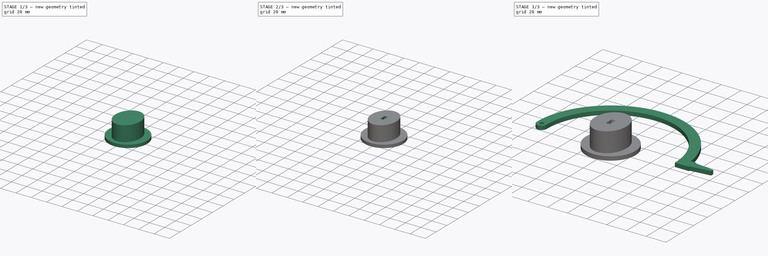
[diagram: build sequence overview — one tinted view per stage of 3, left to right]
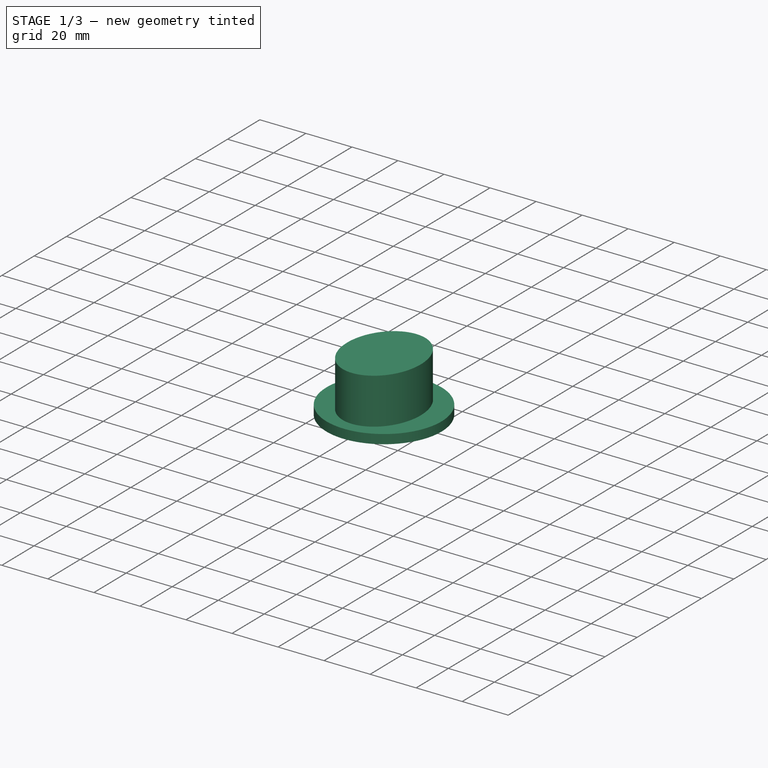
[diagram: stage 1 of 3 — iso view after this stage's code; geometry added in this stage tinted green]
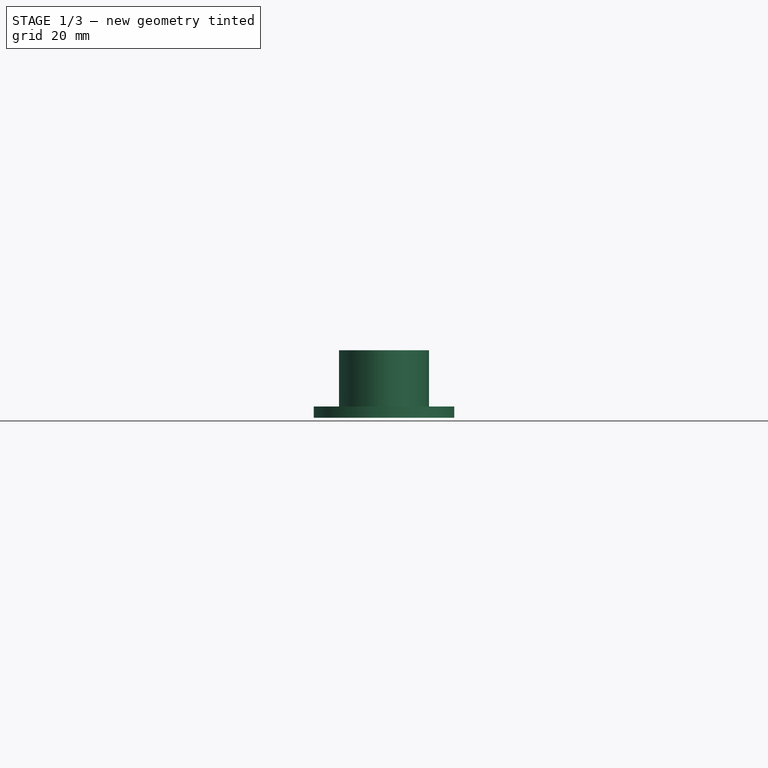
[diagram: stage 1 of 3 — front view after this stage's code; geometry added in this stage tinted green]
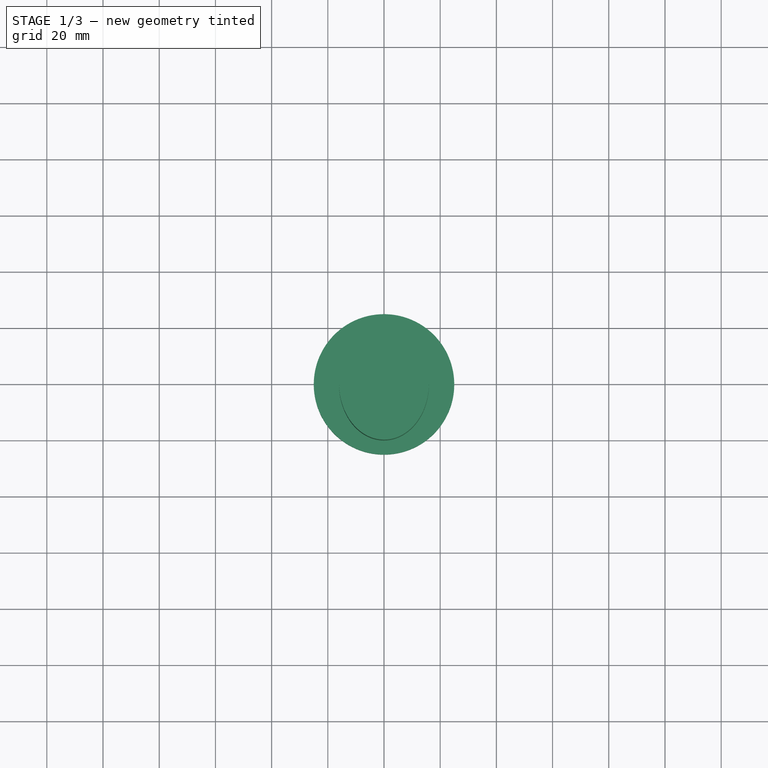
[diagram: stage 1 of 3 — top view after this stage's code; geometry added in this stage tinted green]
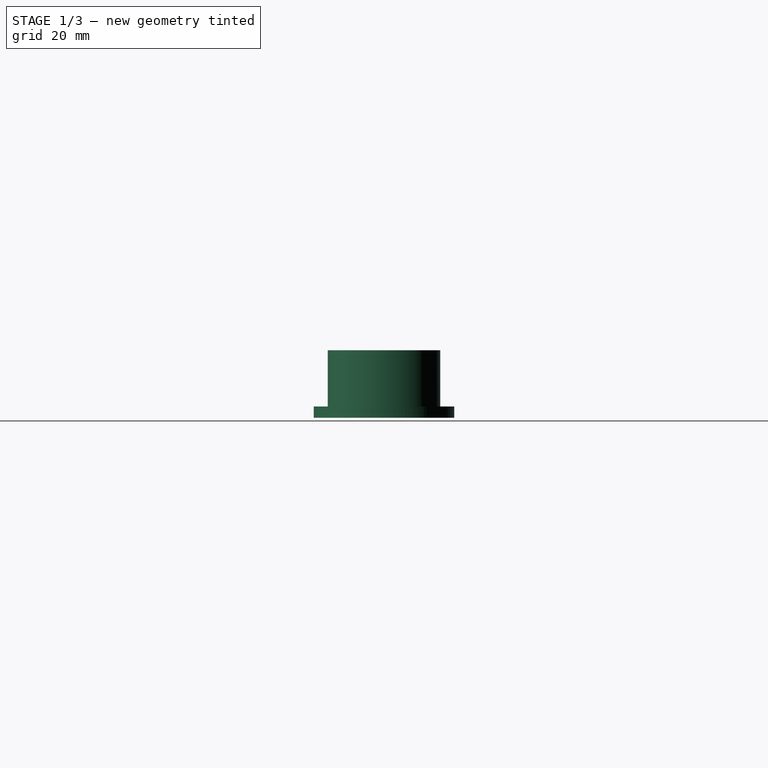
[diagram: stage 1 of 3 — right view after this stage's code; geometry added in this stage tinted green]
FCSTD DOCUMENT  (FreeCAD 0.18R0.18.5)
Label: mosquito-coil-saver
License: All rights reserved
LicenseURL: http://en.wikipedia.org/wiki/All_rights_reserved
objects: Sketcher::SketchObject×5, PartDesign::Pad×3, PartDesign::Pocket×2, PartDesign::Body×2
note: 17 computed .brp shape members not serialized (recipe doc carries the construction recipe); baked Part::Feature solids carry a one-line shape summary decoded from their .brp

FEATURE [PartDesign::Body] Body
  Group = -> [Sketch,Pad,Sketch001,Pocket]
  Origin = -> Origin
  Tip = -> Pocket
FEATURE [Sketcher::SketchObject] Sketch002
  MapMode = 5
  Support = -> [XY_Plane001]
  sketch-geometry (1):
    g0: Circle CenterX=0 CenterY=0 CenterZ=0 NormalX=0 NormalY=0 NormalZ=1 AngleXU=0 Radius=25
  constraints (2):
    c: Diameter(g0) = 50
    c: Coincident(g0,g-1)
FEATURE [PartDesign::Pad] Pad001
  Length = 4
  Length2 = 100
  Profile = -> Sketch002
  Type = 0
FEATURE [Sketcher::SketchObject] Sketch003
  MapMode = 5
  Placement = pos=(0,0,4) rot=(0,0,1;0rad)
  Support = -> [Pad001]
  sketch-geometry (5):
    g0: Ellipse CenterX=0 CenterY=0 CenterZ=0 NormalX=0 NormalY=0 NormalZ=1 MajorRadius=20 MinorRadius=16 AngleXU=-1.5708
    g1: LineSegment [constr] StartX=0 StartY=-20 StartZ=0 EndX=0 EndY=20 EndZ=0
    g2: LineSegment [constr] StartX=16 StartY=0 StartZ=0 EndX=-16 EndY=0 EndZ=0
    g3: GeomPoint X=0 Y=-12 Z=0
    g4: GeomPoint X=0 Y=12 Z=0
  constraints (5):
    c: InternalAlignment(g1-g4 -> g0) x4
    c: Vertical(g1)
    c: Coincident(g0,g-1)
    c: DistanceY(g3,g4) = 24
    c: DistanceY(g1,g1) = 40
FEATURE [PartDesign::Pad] Pad002
  BaseFeature = -> Pad001
  Length = 20
  Length2 = 100
  Profile = -> Sketch003
  Type = 0
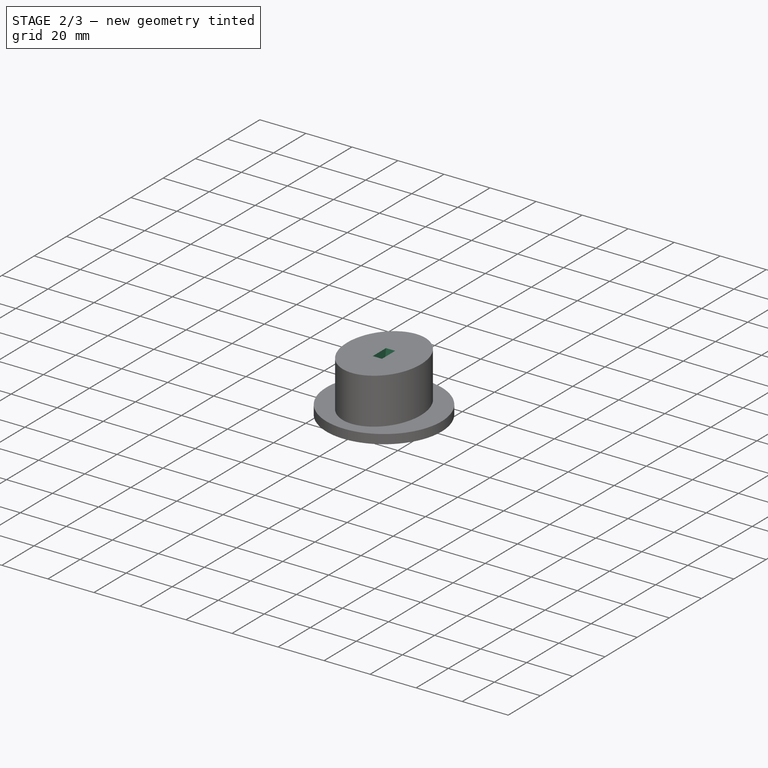
[diagram: stage 2 of 3 — iso view after this stage's code; geometry added in this stage tinted green]
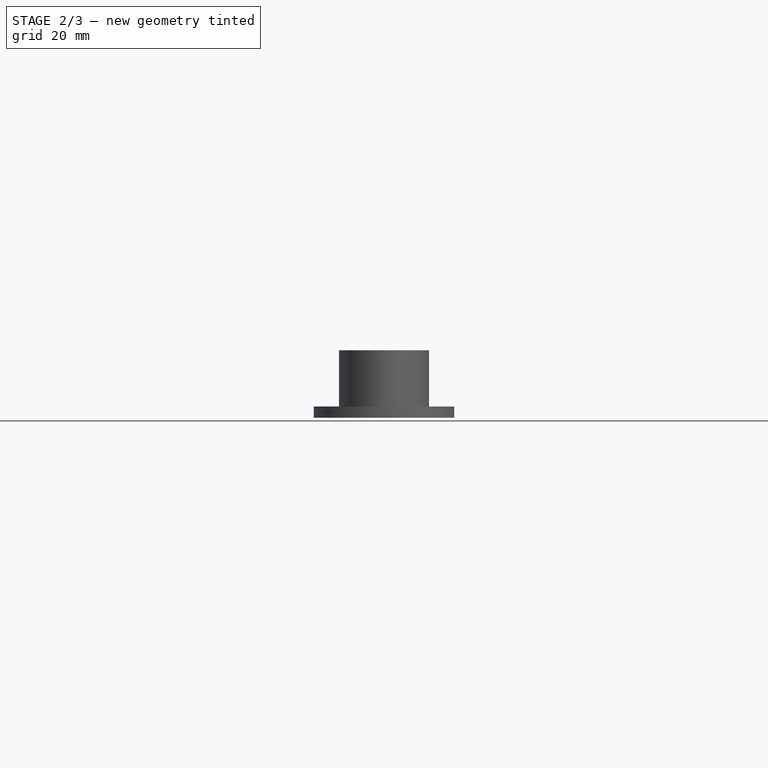
[diagram: stage 2 of 3 — front view after this stage's code; geometry added in this stage tinted green]
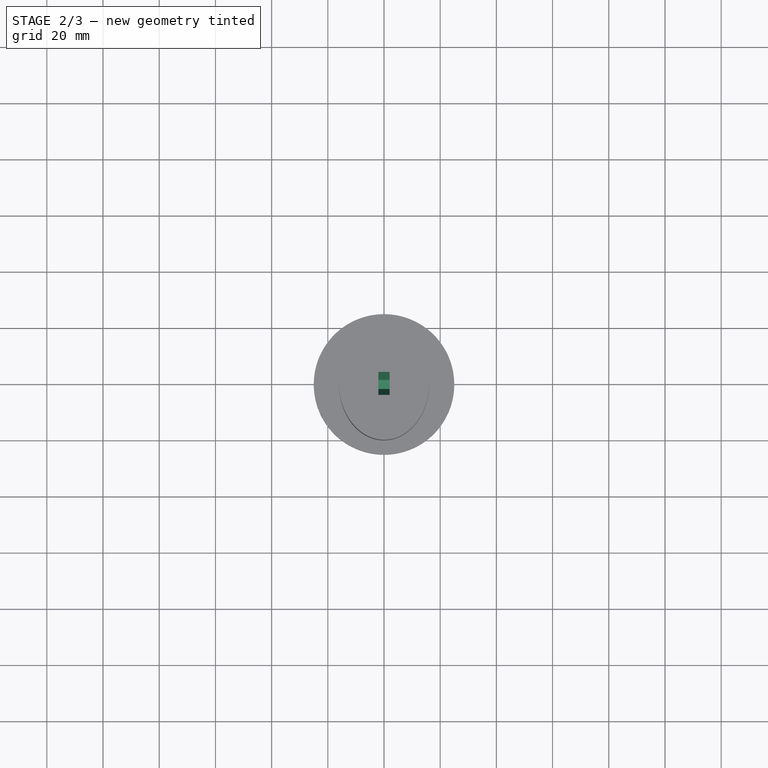
[diagram: stage 2 of 3 — top view after this stage's code; geometry added in this stage tinted green]
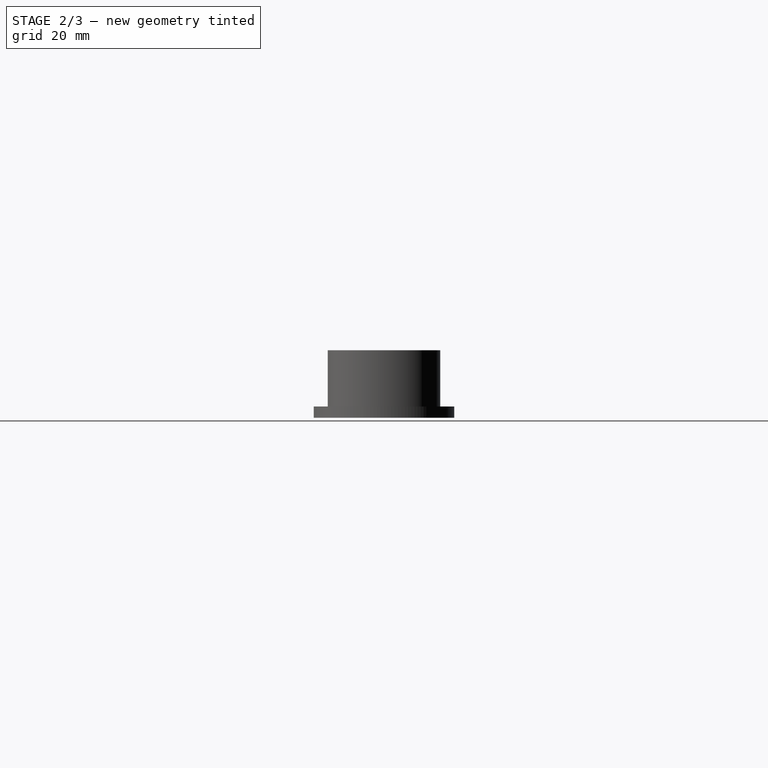
[diagram: stage 2 of 3 — right view after this stage's code; geometry added in this stage tinted green]
FEATURE [Sketcher::SketchObject] Sketch004
  MapMode = 5
  Placement = pos=(0,0,0) rot=(0.57735,0.57735,0.57735;2.0944rad)
  Support = -> [YZ_Plane001]
  expr: Constraints[10] = 20 + 0.25
  expr: Constraints[6] = 8 + 0.25
  expr: Constraints[7] = 3 + 0.25
  sketch-geometry (4):
    g0: LineSegment StartX=-4.125 StartY=24.25 StartZ=0 EndX=4.125 EndY=24.25 EndZ=0
    g1: LineSegment StartX=4.125 StartY=24.25 StartZ=0 EndX=1.625 EndY=4 EndZ=0
    g2: LineSegment StartX=1.625 StartY=4 StartZ=0 EndX=-1.625 EndY=4 EndZ=0
    g3: LineSegment StartX=-1.625 StartY=4 StartZ=0 EndX=-4.125 EndY=24.25 EndZ=0
  constraints (11):
    c: Coincident(g0,g1)
    c: Coincident(g1,g2)
    c: Coincident(g2,g3)
    c: Horizontal(g2)
    c: Equal(g1,g3)
    c: Coincident(g0,g3)
    c: DistanceX(g0,g0) = 8.25
    c: DistanceX(g2,g2) = 3.25
    c: DistanceY(g-1,g1) = 4
    c: Symmetric(g0,g0,g-2)
    c: DistanceY(g2,g0) = 20.25
FEATURE [PartDesign::Pocket] Pocket001
  BaseFeature = -> Pad002
  Length = 2
  Length2 = 2
  Profile = -> Sketch004
  Type = 4
FEATURE [PartDesign::Body] Body001  label="base"
  Group = -> [Sketch002,Pad001,Sketch003,Pad002,Sketch004,Pocket001]
  Origin = -> Origin001
  Tip = -> Pocket001
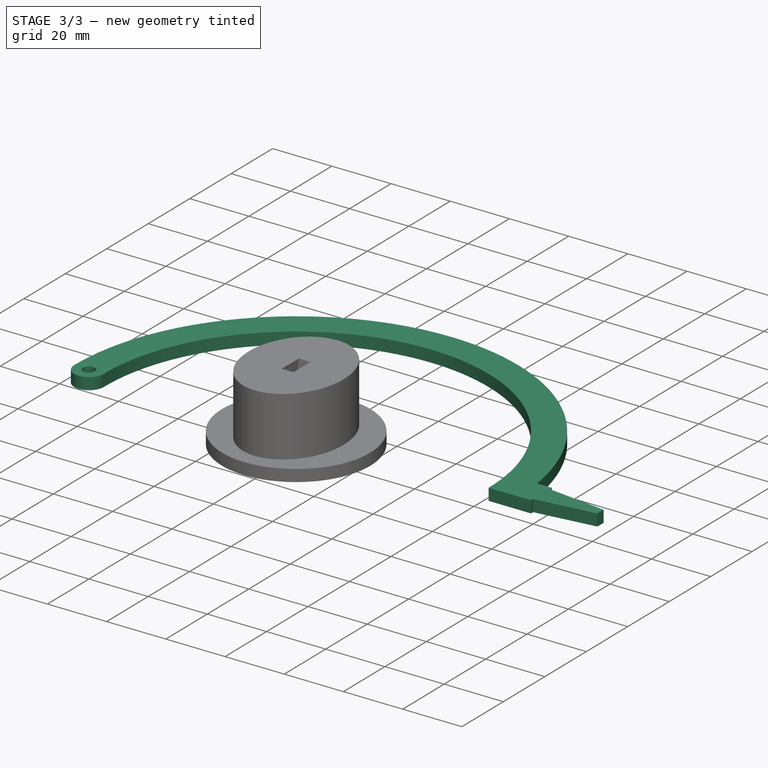
[diagram: stage 3 of 3 — iso view after this stage's code; geometry added in this stage tinted green]
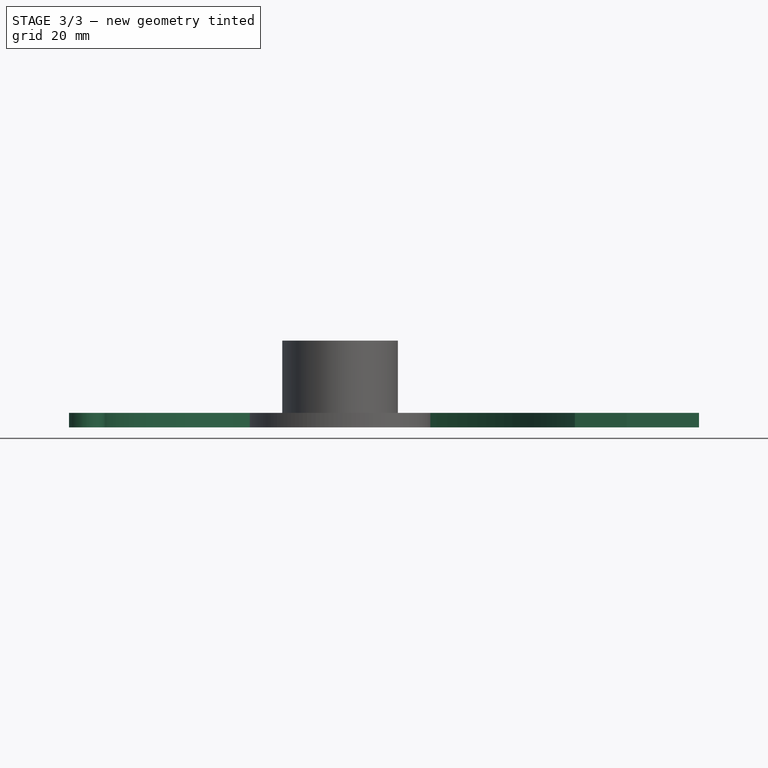
[diagram: stage 3 of 3 — front view after this stage's code; geometry added in this stage tinted green]
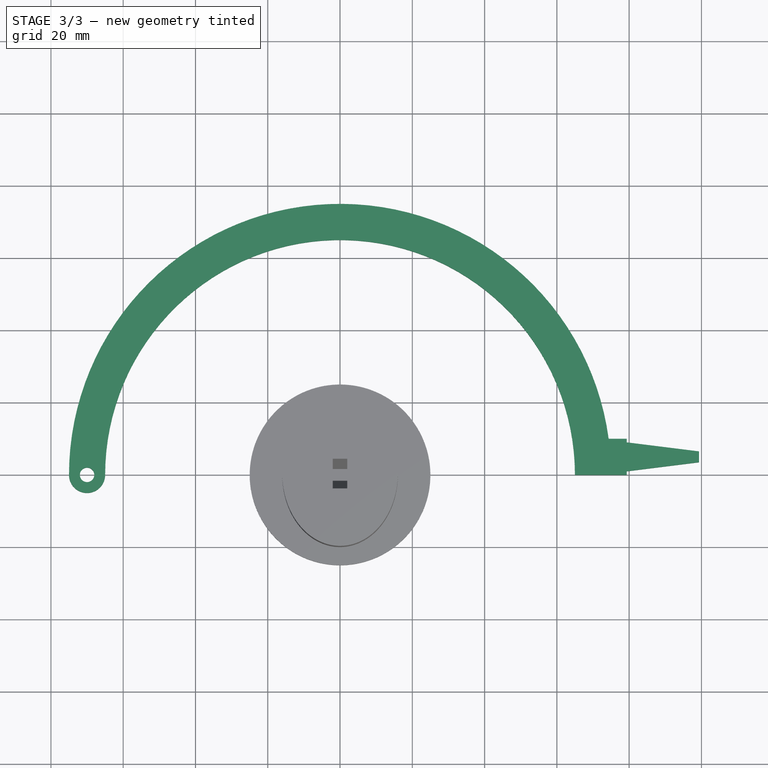
[diagram: stage 3 of 3 — top view after this stage's code; geometry added in this stage tinted green]
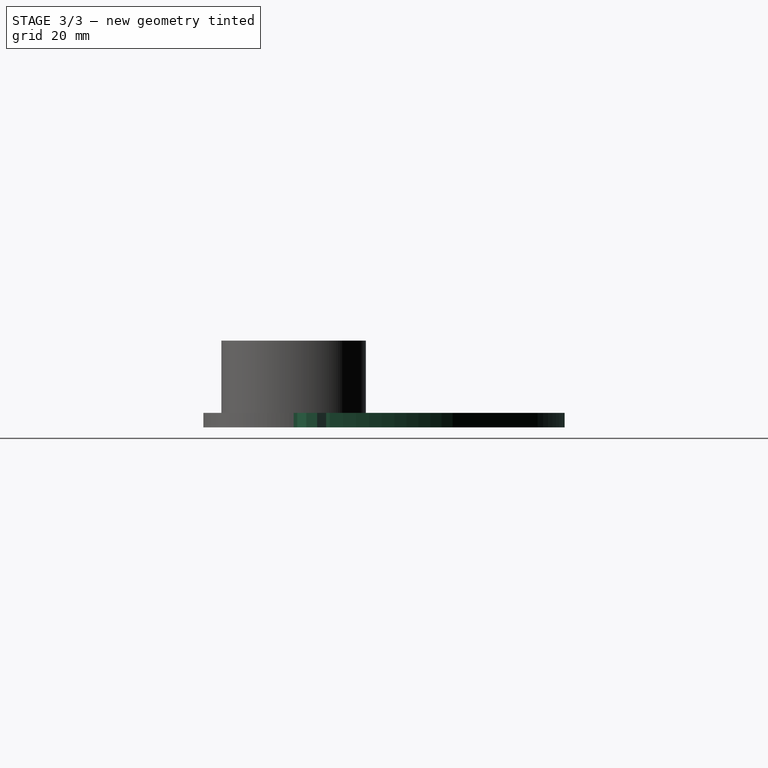
[diagram: stage 3 of 3 — right view after this stage's code; geometry added in this stage tinted green]
FEATURE [Sketcher::SketchObject] Sketch
  MapMode = 5
  Support = -> [XY_Plane]
  expr: Constraints[4] = 120 + 10
  sketch-geometry (12):
    g0: ArcOfCircle CenterX=0 CenterY=0 CenterZ=0 NormalX=0 NormalY=0 NormalZ=1 AngleXU=0 Radius=75 StartAngle=0.133732 EndAngle=3.14159
    g1: ArcOfCircle CenterX=0 CenterY=0 CenterZ=0 NormalX=0 NormalY=0 NormalZ=1 AngleXU=0 Radius=65 StartAngle=0 EndAngle=3.14159
    g2: LineSegment [constr] StartX=-75 StartY=0 StartZ=0 EndX=-65 EndY=-1.2e-15 EndZ=0
    g3: LineSegment StartX=74.3303 StartY=10 StartZ=0 EndX=79.3303 EndY=10 EndZ=0
    g4: LineSegment StartX=79.3303 StartY=0 StartZ=0 EndX=65 EndY=0 EndZ=0
    g5: LineSegment StartX=99.3303 StartY=6.5 StartZ=0 EndX=99.3303 EndY=3.5 EndZ=0
    g6: LineSegment StartX=79.3303 StartY=9 StartZ=0 EndX=79.3303 EndY=10 EndZ=0
    g7: LineSegment StartX=79.3303 StartY=9 StartZ=0 EndX=99.3303 EndY=6.5 EndZ=0
    g8: LineSegment StartX=79.3303 StartY=0 StartZ=0 EndX=79.3303 EndY=1 EndZ=0
    g9: LineSegment StartX=79.3303 StartY=1 StartZ=0 EndX=99.3303 EndY=3.5 EndZ=0
    g10: LineSegment [constr] StartX=74.3303 StartY=10 StartZ=0 EndX=74.3303 EndY=0 EndZ=0
    g11: ArcOfCircle CenterX=-70 CenterY=0 CenterZ=0 NormalX=0 NormalY=0 NormalZ=1 AngleXU=0 Radius=5 StartAngle=3.14159 EndAngle=6.28319
  constraints (36):
    c: Coincident(g1,g0)
    c: PointOnObject(g1,g-1)
    c: PointOnObject(g1,g-1)
    c: PointOnObject(g0,g-1)
    c: DistanceX(g1,g1) = 130
    c: DistanceX(g0,g1) = 10
    c: Coincident(g2,g1)
    c: Coincident(g2,g0)
    c: Coincident(g4,g1)
    c: PointOnObject(g4,g-1)
    c: Coincident(g3,g0)
    c: Horizontal(g3)
    c: Vertical(g5)
    c: DistanceX(g3,g5) = 20
    c: DistanceY(g5,g5) = 3
    c: Coincident(g6,g7)
    c: Coincident(g6,g3)
    c: Vertical(g6)
    c: Coincident(g8,g4)
    c: Vertical(g8)
    c: Coincident(g9,g8)
    c: Coincident(g9,g5)
    c: Coincident(g7,g5)
    c: PointOnObject(g8,g6)
    c: Equal(g6,g8)
    c: Equal(g7,g9)
    c: Vertical(g10)
    c: PointOnObject(g10,g4)
    c: Equal(g2,g10)
    c: DistanceX(g0,g4) = 5
    c: Coincident(g0,g-1)
    c: Coincident(g0,g10)
    c: DistanceY(g8,g6) = 8
    c: PointOnObject(g11,g-1)
    c: Coincident(g11,g1)
    c: Coincident(g11,g0)
FEATURE [PartDesign::Pad] Pad
  Length = 4
  Length2 = 100
  Profile = -> Sketch
  Type = 0
FEATURE [Sketcher::SketchObject] Sketch001
  ExternalGeometry = -> [Pad]
  MapMode = 5
  Placement = pos=(0,0,4) rot=(0,0,1;0rad)
  Support = -> [Pad]
  sketch-geometry (3):
    g0: Circle CenterX=-70 CenterY=0 CenterZ=0 NormalX=0 NormalY=0 NormalZ=1 AngleXU=0 Radius=2
    g1: LineSegment [constr] StartX=-75 StartY=6e-16 StartZ=0 EndX=-70 EndY=0 EndZ=0
    g2: LineSegment [constr] StartX=-70 StartY=0 StartZ=0 EndX=-65 EndY=-1.2e-15 EndZ=0
  constraints (7):
    c: PointOnObject(g0,g-1)
    c: Coincident(g1,g2)
    c: Equal(g2,g1)
    c: Coincident(g1,g-3)
    c: Coincident(g2,g-3)
    c: Diameter(g0) = 4
    c: Coincident(g0,g1)
FEATURE [PartDesign::Pocket] Pocket
  BaseFeature = -> Pad
  Length = 5
  Length2 = 100
  Profile = -> Sketch001
  Type = 1
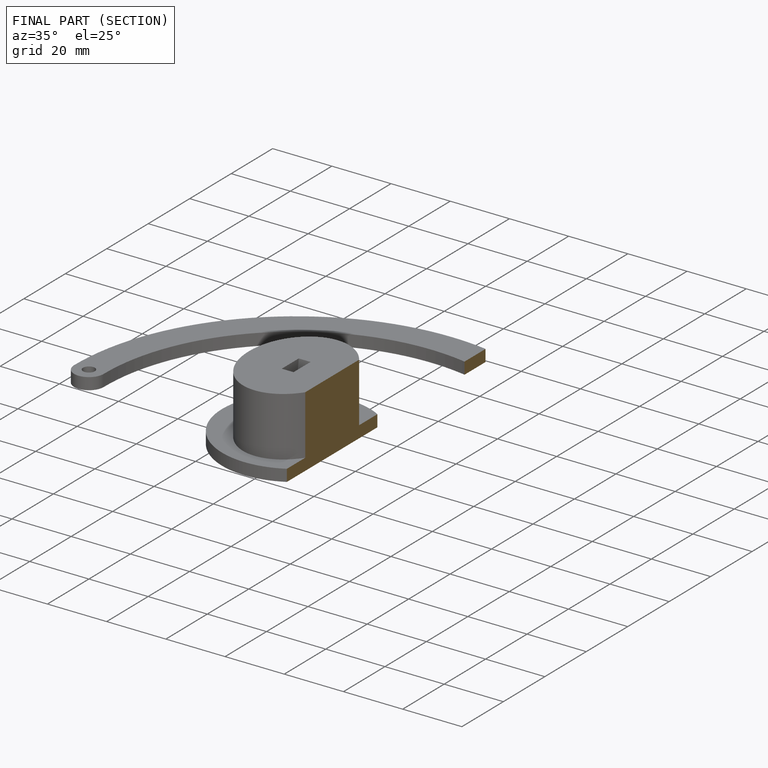
[diagram: finished part — half-section view (interior)]
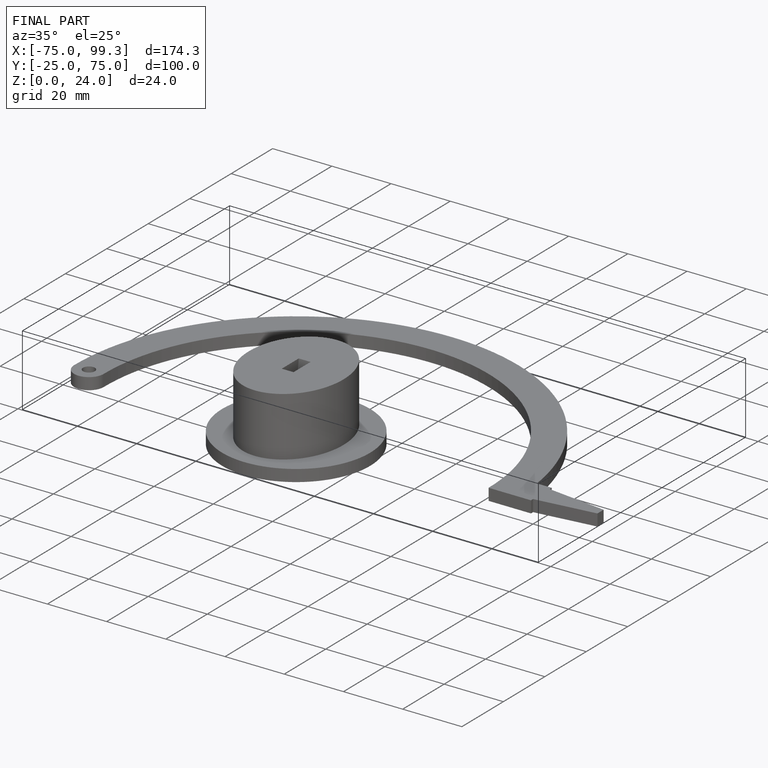
[diagram: finished part — iso view with bounding-box wireframe]
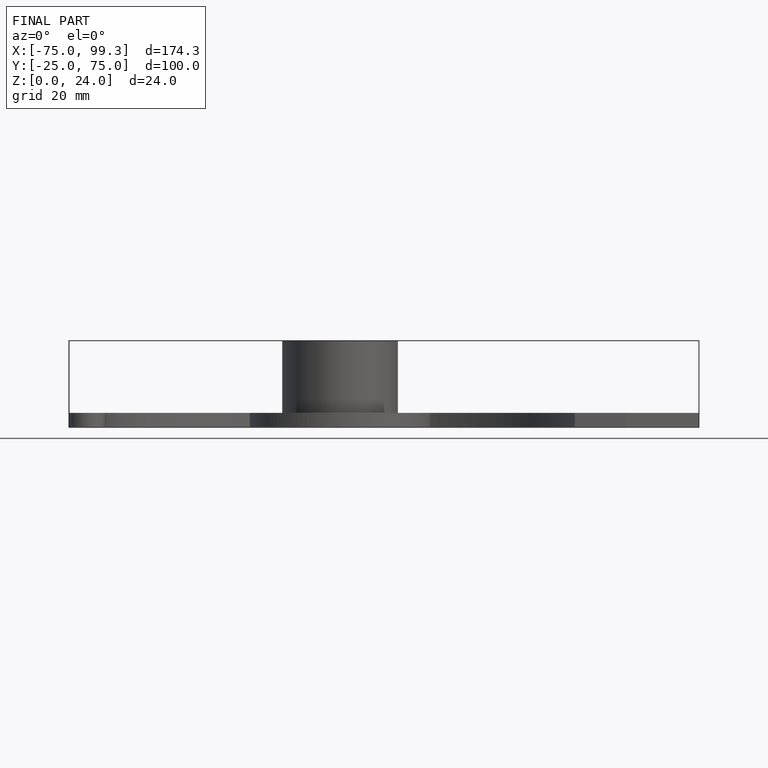
[diagram: finished part — front view with bounding-box wireframe]
